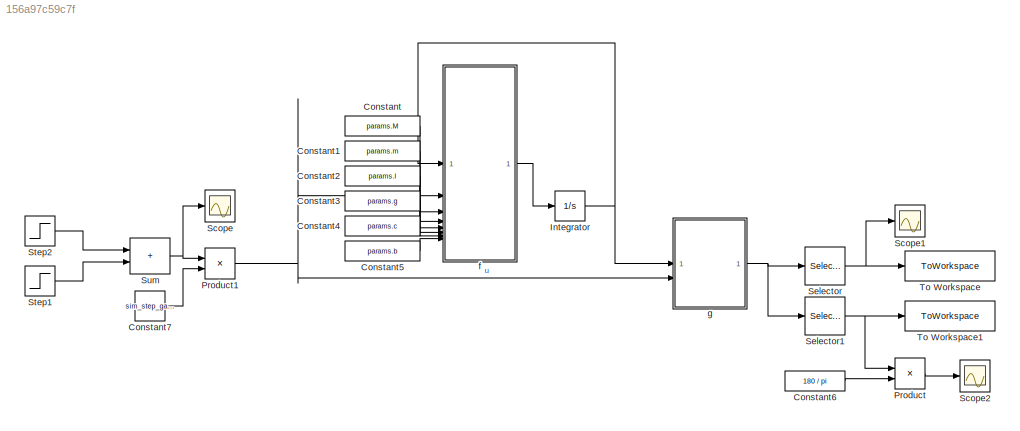
MODEL slx_156a97c59c7f
KIND model
CONFIG AbsTol = 1e-8
CONFIG EnableMultiTasking = off
CONFIG FixedStep = 0.01
CONFIG MaxStep = auto
CONFIG MinStep = auto
CONFIG RelTol = 1e-6
CONFIG SampleTimeConstraint = Unconstrained
CONFIG SolverName = ode45
CONFIG StartTime = 0.0
CONFIG StopTime = 20
BLOCK [Constant] Constant
  Value = params.M
BLOCK [Constant] Constant1
  Value = params.m
BLOCK [Constant] Constant2
  Value = params.l
BLOCK [Constant] Constant3
  Value = params.g
BLOCK [Constant] Constant4
  Value = params.c
BLOCK [Constant] Constant5
  Value = params.b
BLOCK [Constant] Constant6
  Value = 180 / pi
BLOCK [Constant] Constant7
  Value = sim_step_gain
BLOCK [Integrator] Integrator
  InitialCondition = [0; 0; pi; 0]
BLOCK [Product] Product
BLOCK [Product] Product1
BLOCK [Scope] Scope
  Floating = off
  NumInputPorts = 1
  ScopeSpecificationString = Simulink.scopes.TimeScopeBlockCfg('CurrentConfiguration', extmgr.ConfigurationSet(extmgr.Configuration('Core','General UI',true),extmgr.Configuration('Core','Source UI',true),extmgr.Configuration('Sources','WiredSimulink',true),extmgr.Configuration('Visuals','Time Domain',true,'SerializedDisplays',{struct('MinYLimReal','-0.125','MaxYLimReal','1.125','YLabelReal','','MinYLimMag','0.00000','MaxYLimM...<+1429ch>
BLOCK [Scope] Scope1
  Floating = off
  NumInputPorts = 1
  ScopeSpecificationString = Simulink.scopes.TimeScopeBlockCfg('CurrentConfiguration', extmgr.ConfigurationSet(extmgr.Configuration('Core','General UI',true),extmgr.Configuration('Core','Source UI',true),extmgr.Configuration('Sources','WiredSimulink',true,'DataLoggingVariableName','ScopeData1'),extmgr.Configuration('Visuals','Time Domain',true,'SerializedDisplays',{struct('MinYLimReal','-0.56159','MaxYLimReal','5.05432','YLab...<+1485ch>
BLOCK [Scope] Scope2
  Floating = off
  NumInputPorts = 1
  ScopeSpecificationString = Simulink.scopes.TimeScopeBlockCfg('CurrentConfiguration', extmgr.ConfigurationSet(extmgr.Configuration('Core','General UI',true),extmgr.Configuration('Core','Source UI',true),extmgr.Configuration('Sources','WiredSimulink',true,'DataLoggingVariableName','ScopeData2'),extmgr.Configuration('Visuals','Time Domain',true,'SerializedDisplays',{struct('MinYLimReal','175.4305','MaxYLimReal','184.61979','YL...<+1494ch>
BLOCK [Selector] Selector
  IndexOptions = Index vector (dialog)
  Indices = 1
  InputPortWidth = 2
  OutputSizes = 1
BLOCK [Selector] Selector1
  IndexOptions = Index vector (dialog)
  Indices = 2
  InputPortWidth = 2
  OutputSizes = 1
BLOCK [Step] Step1
  SampleTime = 0
BLOCK [Step] Step2
  After = -1
  SampleTime = 0
  Time = 2
BLOCK [Sum] Sum
  IconShape = rectangular
BLOCK [ToWorkspace] To Workspace
  FixptAsFi = on
  MaxDataPoints = inf
  SampleTime = -1
  Save2DSignal = 2-D array (concatenate along first dimension)
  VariableName = x
BLOCK [ToWorkspace] To Workspace1
  FixptAsFi = on
  MaxDataPoints = inf
  SampleTime = -1
  Save2DSignal = 2-D array (concatenate along first dimension)
  VariableName = theta
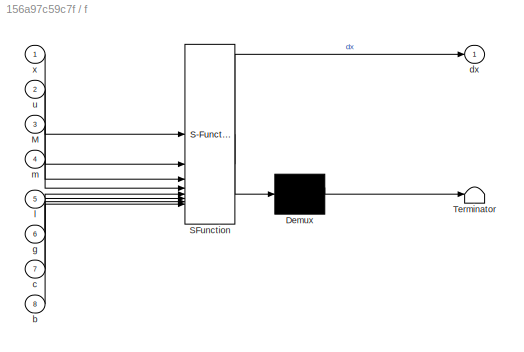
BLOCK [SubSystem] f
  ErrorFcn = Stateflow.Translate.translate
  PermitHierarchicalResolution = ExplicitOnly
  SFBlockType = MATLAB Function
  TreatAsAtomicUnit = on
BLOCK [Demux] f/ Demux 
  Outputs = 1
BLOCK [S-Function] f/ SFunction 
  EnableBusSupport = on
  FunctionName = sf_sfun
  PortCounts = [8 2]
  SFcnIsStateOwnerBlock = off
  SFunctionDeploymentMode = off
  Tag = Stateflow S-Function 2
BLOCK [Terminator] f/ Terminator 
BLOCK [Inport] f/M
  Port = 3
BLOCK [Inport] f/b
  Port = 8
BLOCK [Inport] f/c
  Port = 7
BLOCK [Outport] f/dx
BLOCK [Inport] f/g
  Port = 6
BLOCK [Inport] f/l
  Port = 5
BLOCK [Inport] f/m
  Port = 4
BLOCK [Inport] f/u
  Port = 2
BLOCK [Inport] f/x
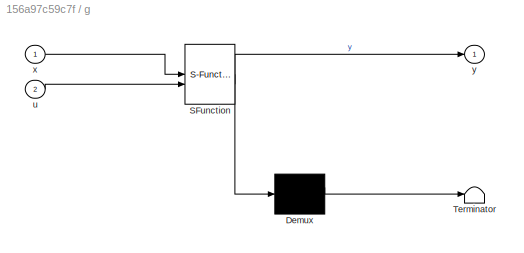
BLOCK [SubSystem] g
  ErrorFcn = Stateflow.Translate.translate
  PermitHierarchicalResolution = ExplicitOnly
  SFBlockType = MATLAB Function
  TreatAsAtomicUnit = on
BLOCK [Demux] g/ Demux 
  Outputs = 1
BLOCK [S-Function] g/ SFunction 
  EnableBusSupport = on
  FunctionName = sf_sfun
  PortCounts = [2 2]
  SFcnIsStateOwnerBlock = off
  SFunctionDeploymentMode = off
  Tag = Stateflow S-Function 1
BLOCK [Terminator] g/ Terminator 
BLOCK [Inport] g/u
  Port = 2
BLOCK [Inport] g/x
BLOCK [Outport] g/y
LINE Constant1:1 -> f:4
LINE Constant2:1 -> f:5
LINE Constant3:1 -> f:6
LINE Constant4:1 -> f:7
LINE Constant5:1 -> f:8
LINE Constant6:1 -> Product:2
LINE Constant7:1 -> Product1:2
LINE Constant:1 -> f:3
NET Integrator:1 -> f:1, g:1
NET Product1:1 -> f:2, g:2
LINE Product:1 -> Scope2:1
NET Selector1:1 -> Product:1, To Workspace1:1
NET Selector:1 -> Scope1:1, To Workspace:1
LINE Step1:1 -> Sum:2
LINE Step2:1 -> Sum:1
NET Sum:1 -> Product1:1, Scope:1
LINE f:1 -> Integrator:1
NET g:1 -> Selector1:1, Selector:1
note: NET lines group one-source signal fan-out (src -> all destinations, sorted); 1:1 wires keep LINE
CHART g states=1 transitions=1
  STATE_LABEL 'eML_blk_kernel()'
  STATE_LABEL 'SCRIPT:\nfunction y = g(x, u)\n    y = [\n        x(1); % x\n        x(3); % theta\n    ];\nend'
CHART f states=1 transitions=1
  STATE_LABEL 'eML_blk_kernel()'
  STATE_LABEL 'SCRIPT:\nfunction dx = f(x, u, M, m, l, g, c, b)\n    dx = [\n        x(2); % dx\n        (b / l * x(4) * cos(x(3)) + m * l * x(4) ^ 2 * sin(x(3)) - c * x(2) - m * g * sin(x(3)) * cos(x(3)) + u) / ...\n            (M + m * sin(x(3)) ^ 2); % d2x\n        x(4); % dtheta\n        ((M + m) * g / l * sin(x(3)) - (M / m + 1) * b / l ^ 2 * x(4) - m * l * x(4) ^ 2 * cos(x(3)) * sin(x(3)) + c / l * x(2) * cos(x(3...<+87ch>'
CHART  states=0 transitions=0
CHART  states=0 transitions=0
